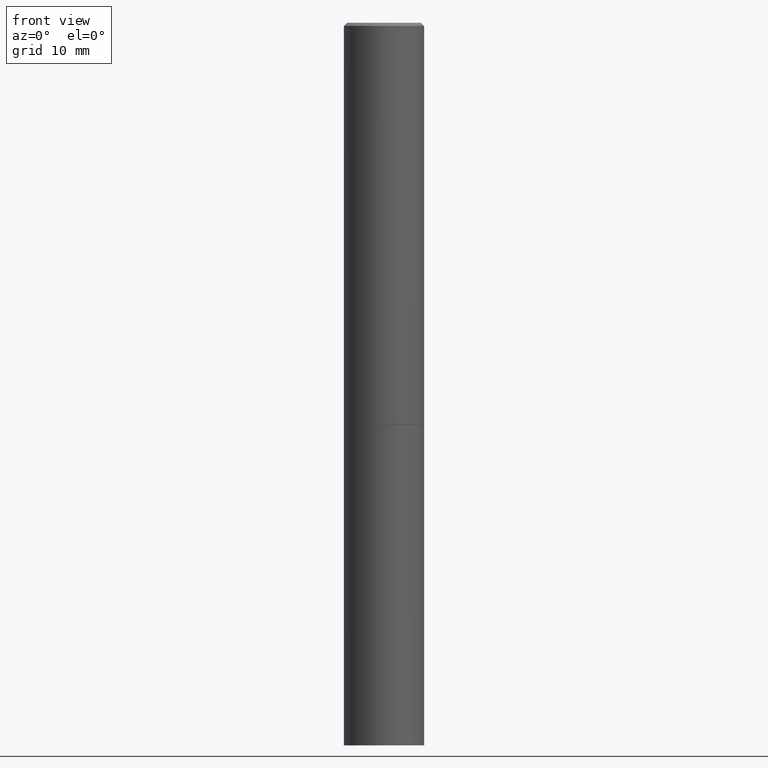
[diagram: clean part render]
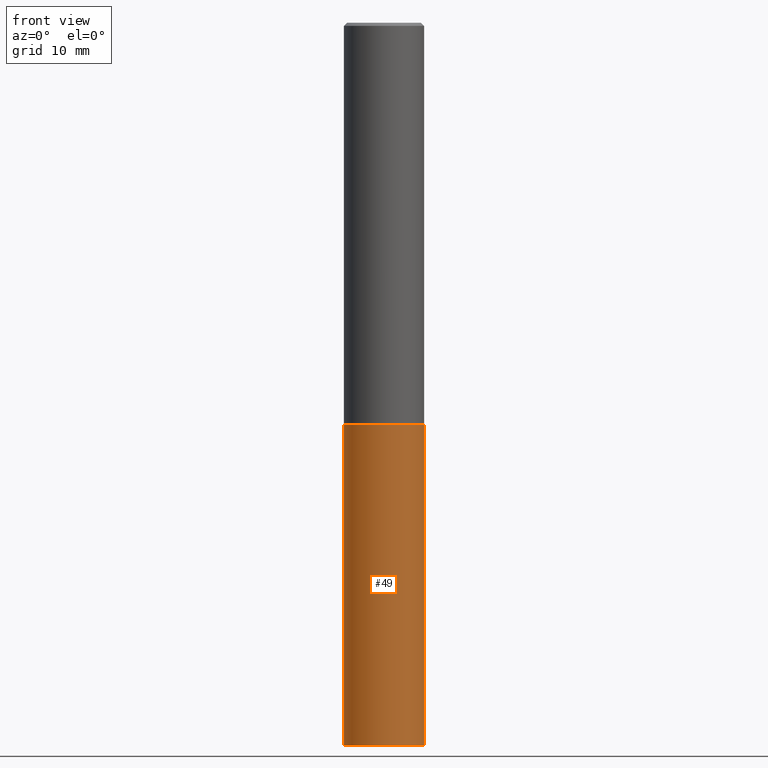
[diagram: same view with one face highlighted and labeled with its STEP entity id]
A machine part, front view. The second image highlights one B-rep face of the part: STEP entity #49.
In plain terms, the highlighted cylindrical surface (partial cylindrical patch) has radius 6.35 mm, axis along (-0, 0, 1).
Its self-contained STEP definition (entity closure, byte-faithful):
#17 = VECTOR ( 'NONE', #261, 39.37007874015748143 ) ;
#20 = EDGE_CURVE ( 'NONE', #198, #248, #181, .T. ) ;
#23 = CIRCLE ( 'NONE', #213, 0.2500000000000000000 ) ;
#37 = VERTEX_POINT ( 'NONE', #146 ) ;
#41 = VECTOR ( 'NONE', #215, 39.37007874015748143 ) ;
#46 = ORIENTED_EDGE ( 'NONE', *, *, #75, .T. ) ;
#47 = ORIENTED_EDGE ( 'NONE', *, *, #67, .F. ) ;
#49 = ADVANCED_FACE ( 'NONE', ( #386 ), #290, .T. ) ;
#54 = CARTESIAN_POINT ( 'NONE',  ( -0.2499999999999998057, -1.396592535537259180E-14, -4.500000000000000000 ) ) ;
#63 = CARTESIAN_POINT ( 'NONE',  ( -0.2500000000000000000, 1.776356839400250465E-15, -1.229733772563726445E-29 ) ) ;
#67 = EDGE_CURVE ( 'NONE', #37, #370, #23, .T. ) ;
#75 = EDGE_CURVE ( 'NONE', #248, #370, #330, .T. ) ;
#89 = CARTESIAN_POINT ( 'NONE',  ( 0.2500000000000000000, -1.047444401652943162E-14, -2.500000000000000000 ) ) ;
#118 = CARTESIAN_POINT ( 'NONE',  ( 0.2500000000000000000, -1.745740669421566678E-15, 1.219044193948983948E-29 ) ) ;
#146 = CARTESIAN_POINT ( 'NONE',  ( -0.2500000000000000000, -1.044382784655076046E-14, -2.500000000000000000 ) ) ;
#152 = CARTESIAN_POINT ( 'NONE',  ( 0.000000000000000000, 0.000000000000000000, 0.000000000000000000 ) ) ;
#181 = CIRCLE ( 'NONE', #354, 0.2500000000000000000 ) ;
#194 = ORIENTED_EDGE ( 'NONE', *, *, #20, .T. ) ;
#198 = VERTEX_POINT ( 'NONE', #54 ) ;
#202 = EDGE_CURVE ( 'NONE', #198, #37, #208, .T. ) ;
#208 = LINE ( 'NONE', #63, #41 ) ;
#209 = DIRECTION ( 'NONE',  ( -2.445468806185136597E-29, 3.491481338843145583E-15, 1.000000000000000000 ) ) ;
#213 = AXIS2_PLACEMENT_3D ( 'NONE', #374, #240, #349 ) ;
#215 = DIRECTION ( 'NONE',  ( -2.445468806185136877E-29, 3.491481338843145188E-15, 1.000000000000000000 ) ) ;
#240 = DIRECTION ( 'NONE',  ( -2.445468806185136597E-29, 3.491481338843145583E-15, 1.000000000000000000 ) ) ;
#248 = VERTEX_POINT ( 'NONE', #358 ) ;
#256 = DIRECTION ( 'NONE',  ( -2.445468806185136597E-29, 3.491481338843145583E-15, 1.000000000000000000 ) ) ;
#261 = DIRECTION ( 'NONE',  ( -2.445468806185136877E-29, 3.491481338843145188E-15, 1.000000000000000000 ) ) ;
#288 = ORIENTED_EDGE ( 'NONE', *, *, #202, .F. ) ;
#290 = CYLINDRICAL_SURFACE ( 'NONE', #333, 0.2500000000000000000 ) ;
#314 = EDGE_LOOP ( 'NONE', ( #288, #194, #46, #47 ) ) ;
#330 = LINE ( 'NONE', #118, #17 ) ;
#333 = AXIS2_PLACEMENT_3D ( 'NONE', #152, #256, #346 ) ;
#346 = DIRECTION ( 'NONE',  ( 1.000000000000000000, -6.982962677686266711E-15, 4.876176775795935793E-29 ) ) ;
#349 = DIRECTION ( 'NONE',  ( 1.000000000000000000, -6.982962677686266711E-15, 0.000000000000000000 ) ) ;
#353 = DIRECTION ( 'NONE',  ( 1.000000000000000000, -6.982962677686270655E-15, 0.000000000000000000 ) ) ;
#354 = AXIS2_PLACEMENT_3D ( 'NONE', #376, #209, #353 ) ;
#358 = CARTESIAN_POINT ( 'NONE',  ( 0.2499999999999998057, -1.742679052423703663E-14, -4.500000000000000000 ) ) ;
#370 = VERTEX_POINT ( 'NONE', #89 ) ;
#374 = CARTESIAN_POINT ( 'NONE',  ( 6.113672015462842613E-29, -8.728703347107864943E-15, -2.500000000000000000 ) ) ;
#376 = CARTESIAN_POINT ( 'NONE',  ( 1.100460962783311469E-28, -1.571166602479415690E-14, -4.500000000000000000 ) ) ;
#386 = FACE_OUTER_BOUND ( 'NONE', #314, .T. ) ;